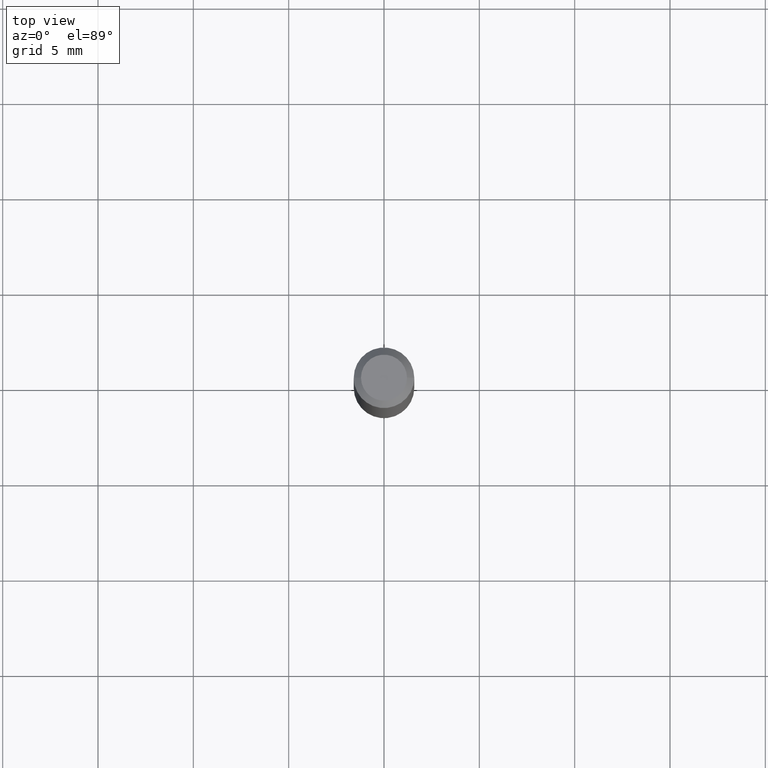
[diagram: clean part render]
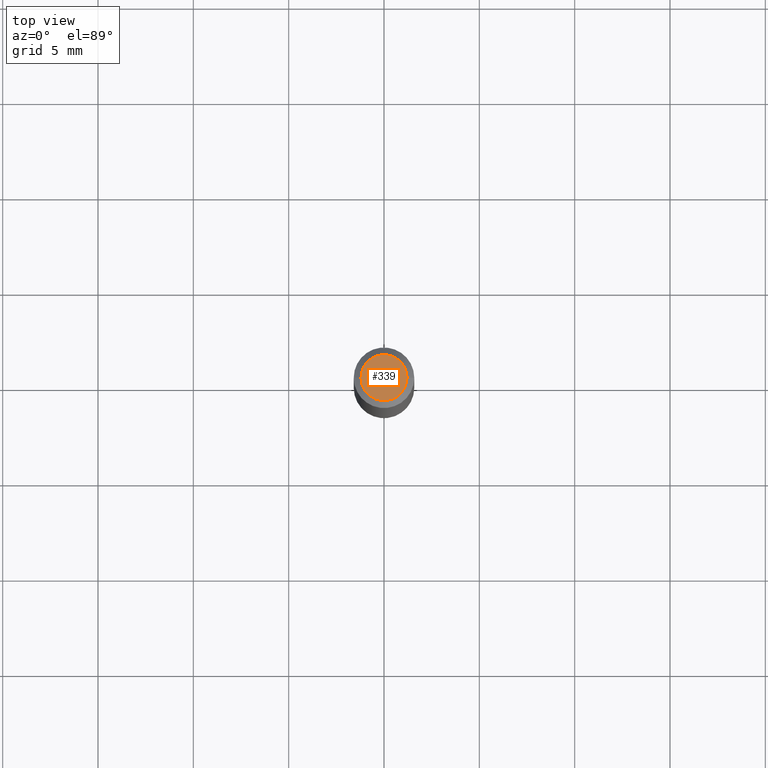
[diagram: same view with one face highlighted and labeled with its STEP entity id]
A machine part, top view. The second image highlights one B-rep face of the part: STEP entity #339.
In plain terms, the highlighted planar face has unit normal (0, -0, -1).
Its self-contained STEP definition (entity closure, byte-faithful):
#5 = PLANE ( 'NONE',  #60 ) ;
#14 = CIRCLE ( 'NONE', #44, 0.04749999999999999362 ) ;
#24 = DIRECTION ( 'NONE',  ( 1.000000000000000000, -6.982962677686267499E-15, 4.884662768193073002E-29 ) ) ;
#44 = AXIS2_PLACEMENT_3D ( 'NONE', #357, #178, #24 ) ;
#60 = AXIS2_PLACEMENT_3D ( 'NONE', #444, #257, #192 ) ;
#74 = DIRECTION ( 'NONE',  ( 1.000000000000000000, -6.982962677686267499E-15, 4.884662768193073002E-29 ) ) ;
#78 = DIRECTION ( 'NONE',  ( -2.445468806185136597E-29, 3.491481338843145583E-15, 1.000000000000000000 ) ) ;
#91 = EDGE_CURVE ( 'NONE', #440, #367, #14, .T. ) ;
#123 = EDGE_LOOP ( 'NONE', ( #185, #451 ) ) ;
#150 = CARTESIAN_POINT ( 'NONE',  ( -0.04749999999999999362, 3.578768372314211985E-16, 9.340792028744928118E-17 ) ) ;
#178 = DIRECTION ( 'NONE',  ( -2.445468806185136597E-29, 3.491481338843145583E-15, 1.000000000000000000 ) ) ;
#185 = ORIENTED_EDGE ( 'NONE', *, *, #296, .T. ) ;
#192 = DIRECTION ( 'NONE',  ( -1.000000000000000000, 6.982962677686265922E-15, -4.876176775795935793E-29 ) ) ;
#215 = AXIS2_PLACEMENT_3D ( 'NONE', #399, #78, #74 ) ;
#257 = DIRECTION ( 'NONE',  ( 2.438088387897960049E-29, -3.491481338843145188E-15, -1.000000000000000000 ) ) ;
#296 = EDGE_CURVE ( 'NONE', #367, #440, #395, .T. ) ;
#339 = ADVANCED_FACE ( 'NONE', ( #370 ), #5, .F. ) ;
#349 = CARTESIAN_POINT ( 'NONE',  ( 0.04749999999999999362, -4.035134999187576651E-16, 9.340792028745427319E-17 ) ) ;
#357 = CARTESIAN_POINT ( 'NONE',  ( -2.284261553135908873E-45, 3.261320105837856889E-31, 9.340792028745169707E-17 ) ) ;
#367 = VERTEX_POINT ( 'NONE', #150 ) ;
#370 = FACE_OUTER_BOUND ( 'NONE', #123, .T. ) ;
#395 = CIRCLE ( 'NONE', #215, 0.04749999999999999362 ) ;
#399 = CARTESIAN_POINT ( 'NONE',  ( -2.284261553135908873E-45, 3.261320105837856889E-31, 9.340792028745169707E-17 ) ) ;
#440 = VERTEX_POINT ( 'NONE', #349 ) ;
#444 = CARTESIAN_POINT ( 'NONE',  ( 3.316907271900976096E-16, 0.04749999999999999362, -1.191414034513235726E-16 ) ) ;
#451 = ORIENTED_EDGE ( 'NONE', *, *, #91, .T. ) ;